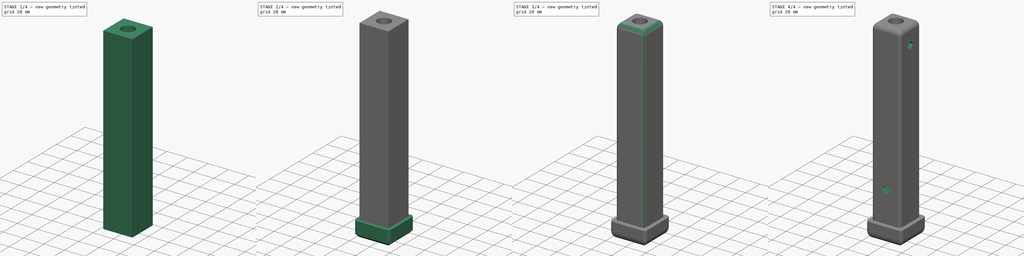
[diagram: build sequence overview — one tinted view per stage of 4, left to right]
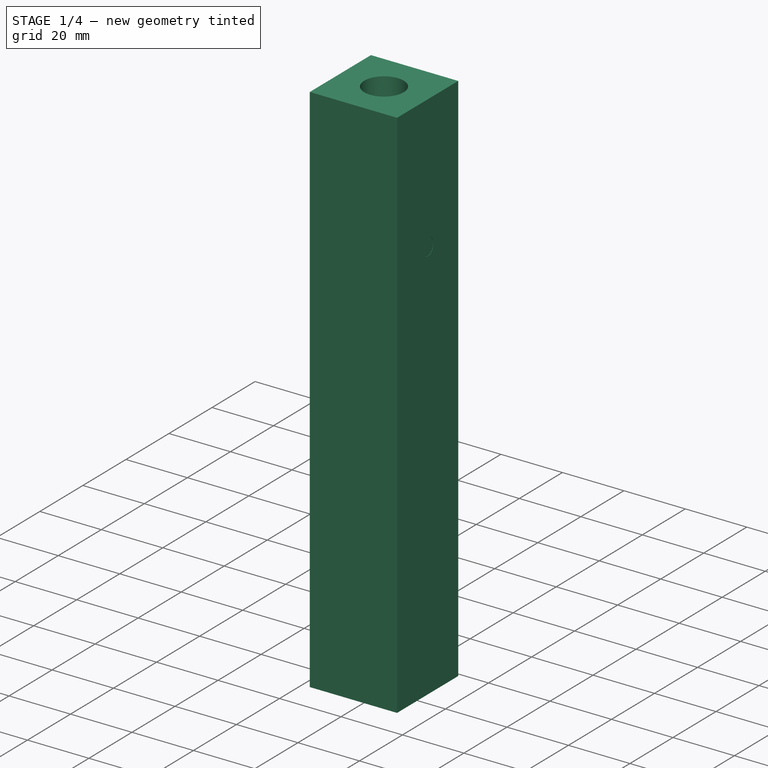
[diagram: stage 1 of 4 — iso view after this stage's code; geometry added in this stage tinted green]
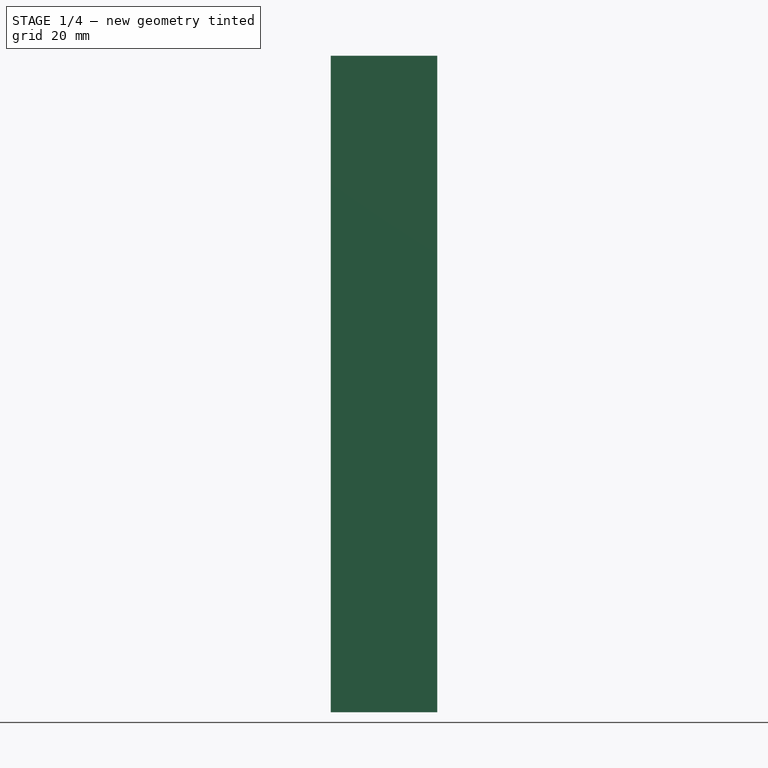
[diagram: stage 1 of 4 — front view after this stage's code; geometry added in this stage tinted green]
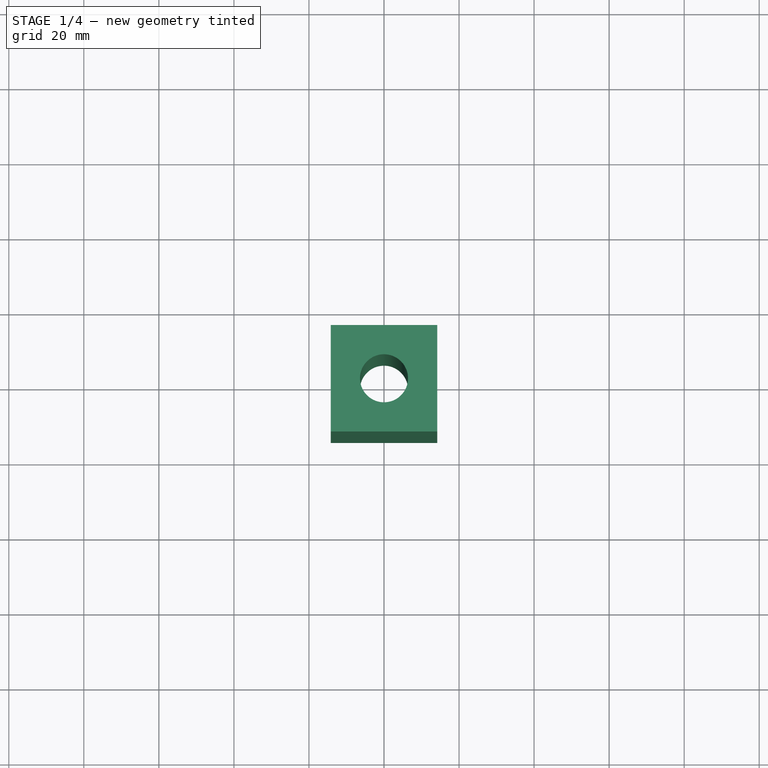
[diagram: stage 1 of 4 — top view after this stage's code; geometry added in this stage tinted green]
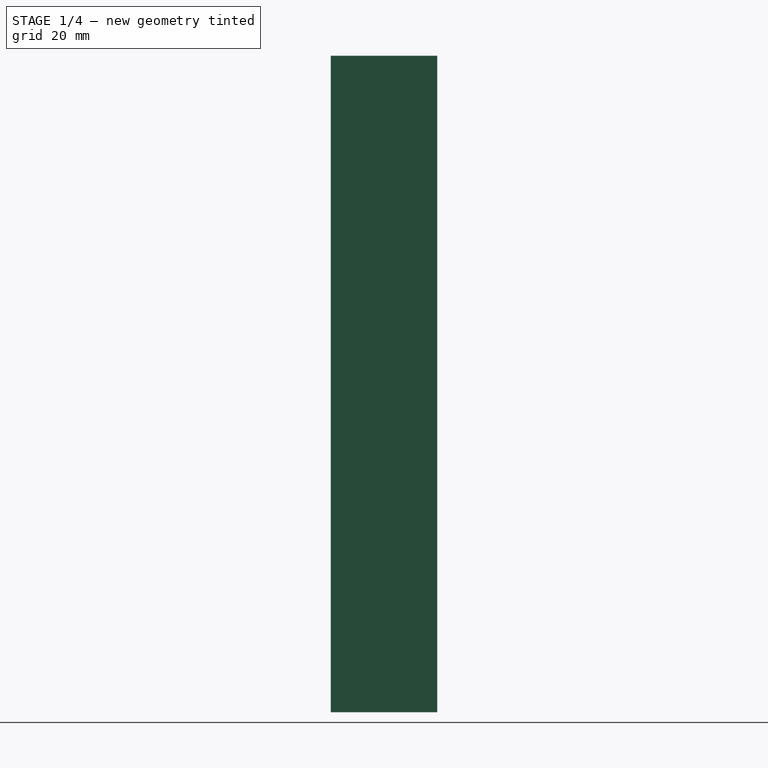
[diagram: stage 1 of 4 — right view after this stage's code; geometry added in this stage tinted green]
FCSTD DOCUMENT  (FreeCAD 0.16R)
Label: StrollerKit2
License: All rights reserved
LicenseURL: http://en.wikipedia.org/wiki/All_rights_reserved
objects: Sketcher::SketchObject×8, PartDesign::Pocket×5, PartDesign::Fillet×5, PartDesign::Pad×2, PartDesign::Chamfer×1
note: 28 computed .brp shape members not serialized (recipe doc carries the construction recipe); baked Part::Feature solids carry a one-line shape summary decoded from their .brp

FEATURE [Sketcher::SketchObject] Sketch
  sketch-geometry (4):
    g0: LineSegment StartX=-14.2 StartY=14.2 StartZ=0 EndX=14.2 EndY=14.2 EndZ=0
    g1: LineSegment StartX=14.2 StartY=14.2 StartZ=0 EndX=14.2 EndY=-14.2 EndZ=0
    g2: LineSegment StartX=14.2 StartY=-14.2 StartZ=0 EndX=-14.2 EndY=-14.2 EndZ=0
    g3: LineSegment StartX=-14.2 StartY=-14.2 StartZ=0 EndX=-14.2 EndY=14.2 EndZ=0
  constraints (11):
    c: Coincident(g0,g1)
    c: Coincident(g1,g2)
    c: Coincident(g2,g3)
    c: Coincident(g3,g0)
    c: Horizontal(g0)
    c: Horizontal(g2)
    c: Vertical(g1)
    c: Vertical(g3)
    c: Symmetric(g0,g2,g-1)
    c: Equal(g0,g1)
    c: Distance(g0) = 28.4
FEATURE [PartDesign::Pad] Pad
  Length = 175
  Length2 = 100
  Sketch = -> Sketch
  Type = 0
FEATURE [Sketcher::SketchObject] Sketch001
  Placement = pos=(0,0,0) rot=(1,0,0;3.14159rad)
  Support = -> Pad [Face5]
  sketch-geometry (1):
    g0: Circle CenterX=0 CenterY=0 CenterZ=0 NormalX=0 NormalY=0 NormalZ=1 Radius=6.4
  constraints (2):
    c: Radius(g0) = 6.4
    c: Coincident(g0,g-1)
FEATURE [PartDesign::Pocket] Pocket
  Length = 5
  Midplane = true
  Sketch = -> Sketch001
  Type = 1
FEATURE [Sketcher::SketchObject] Sketch002
  Placement = pos=(14.2,0,0) rot=(0.57735,0.57735,0.57735;2.0944rad)
  Support = -> Pocket [Face3]
  sketch-geometry (1):
    g0: Circle CenterX=0 CenterY=131.58 CenterZ=0 NormalX=0 NormalY=0 NormalZ=1 Radius=2.74807
  constraints (2):
    c: PointOnObject(g0,g-2)
    c: Radius(g0) = 2.74807
FEATURE [PartDesign::Pocket] Pocket001
  Length = 0.1
  Sketch = -> Sketch002
  Type = 0
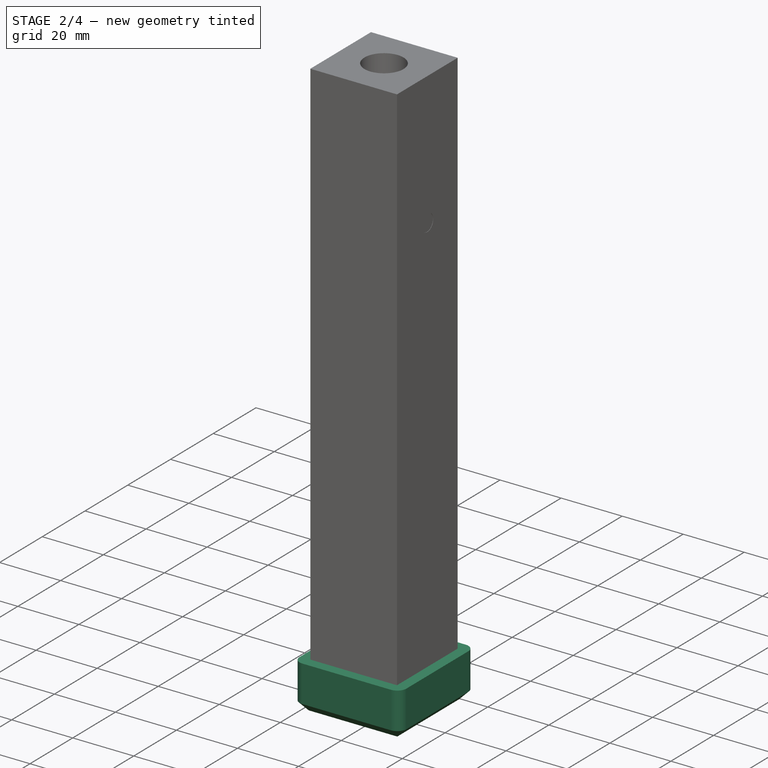
[diagram: stage 2 of 4 — iso view after this stage's code; geometry added in this stage tinted green]
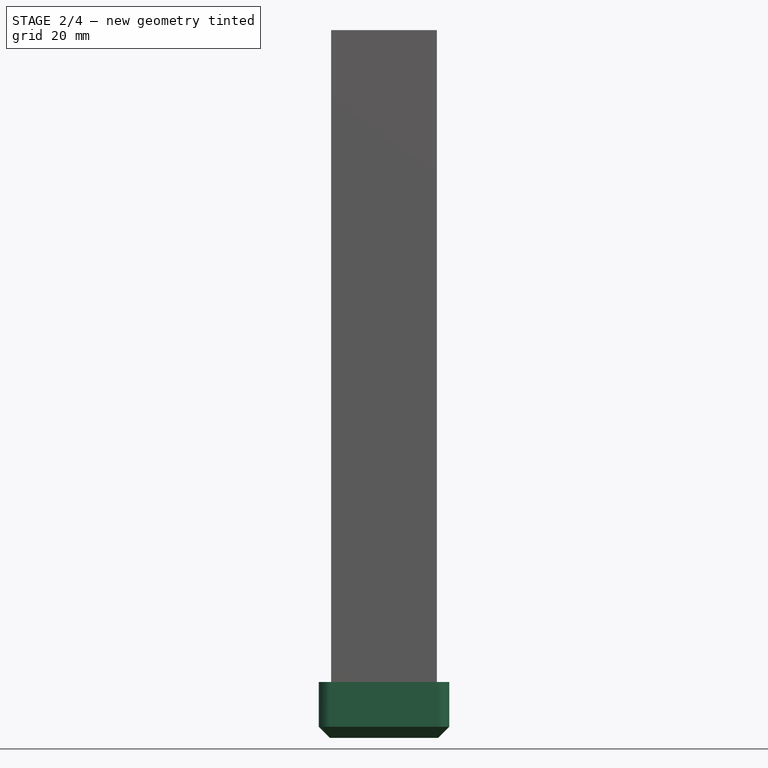
[diagram: stage 2 of 4 — front view after this stage's code; geometry added in this stage tinted green]
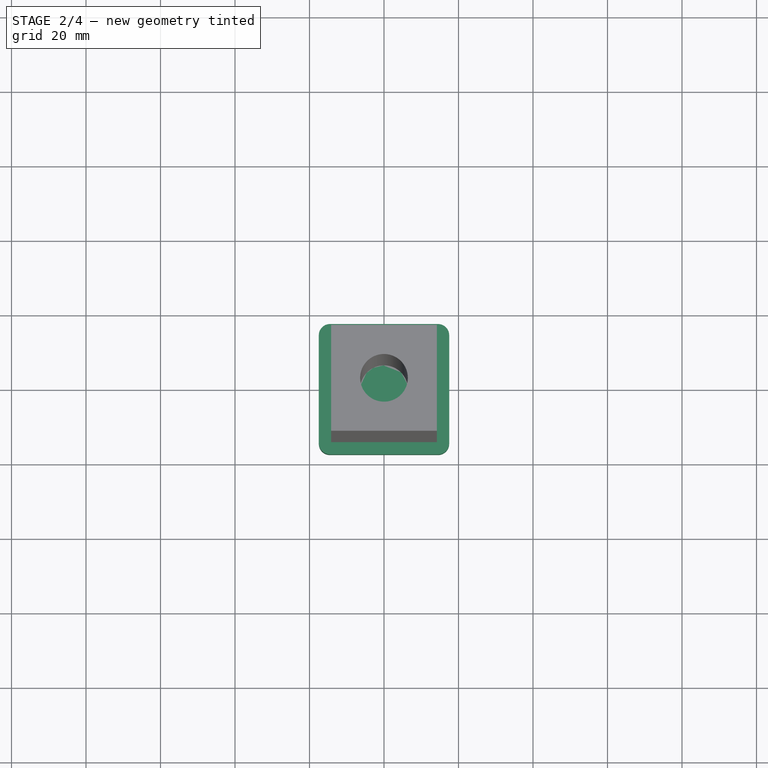
[diagram: stage 2 of 4 — top view after this stage's code; geometry added in this stage tinted green]
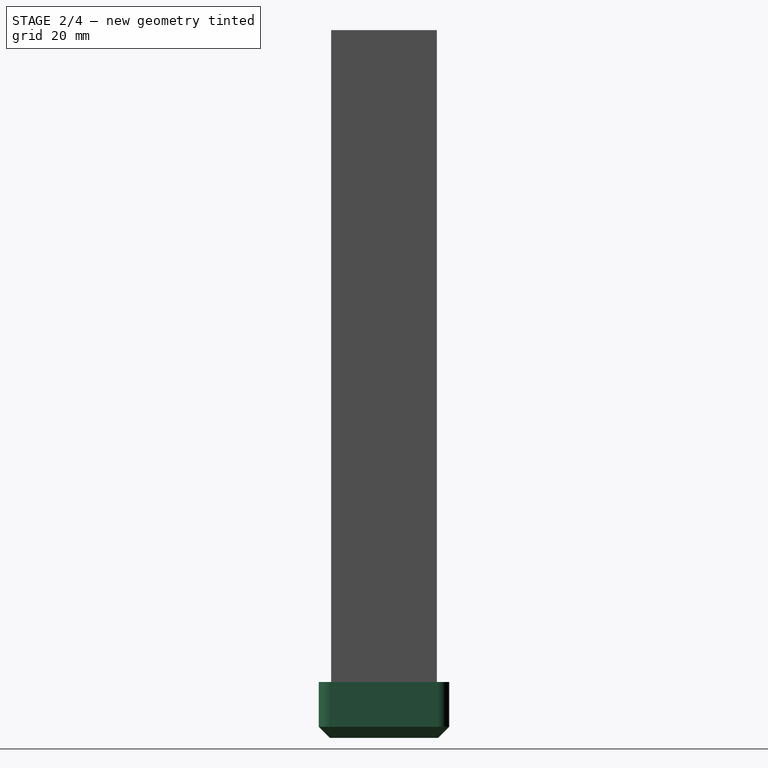
[diagram: stage 2 of 4 — right view after this stage's code; geometry added in this stage tinted green]
FEATURE [Sketcher::SketchObject] Sketch003
  Placement = pos=(0,0,0) rot=(1,0,0;3.14159rad)
  Support = -> Pocket001 [Face4]
  sketch-geometry (4):
    g0: LineSegment StartX=-17.5 StartY=17.5 StartZ=0 EndX=17.5 EndY=17.5 EndZ=0
    g1: LineSegment StartX=17.5 StartY=17.5 StartZ=0 EndX=17.5 EndY=-17.5 EndZ=0
    g2: LineSegment StartX=17.5 StartY=-17.5 StartZ=0 EndX=-17.5 EndY=-17.5 EndZ=0
    g3: LineSegment StartX=-17.5 StartY=-17.5 StartZ=0 EndX=-17.5 EndY=17.5 EndZ=0
  constraints (11):
    c: Coincident(g0,g1)
    c: Coincident(g1,g2)
    c: Coincident(g2,g3)
    c: Coincident(g3,g0)
    c: Horizontal(g0)
    c: Horizontal(g2)
    c: Vertical(g1)
    c: Vertical(g3)
    c: Symmetric(g1,g0,g-1)
    c: Equal(g0,g1)
    c: Distance(g0) = 35
FEATURE [PartDesign::Pad] Pad001
  Length = 15
  Length2 = 100
  Sketch = -> Sketch003
  Type = 0
FEATURE [PartDesign::Fillet] Fillet
  Base = -> Pad001 [Edge24,Edge23,Edge28,Edge26]
  Radius = 3
FEATURE [PartDesign::Chamfer] Chamfer
  Base = -> Fillet [Edge15,Edge17,Edge19,Edge21,Edge23,Edge25,Edge27,Edge28]
  Size = 3
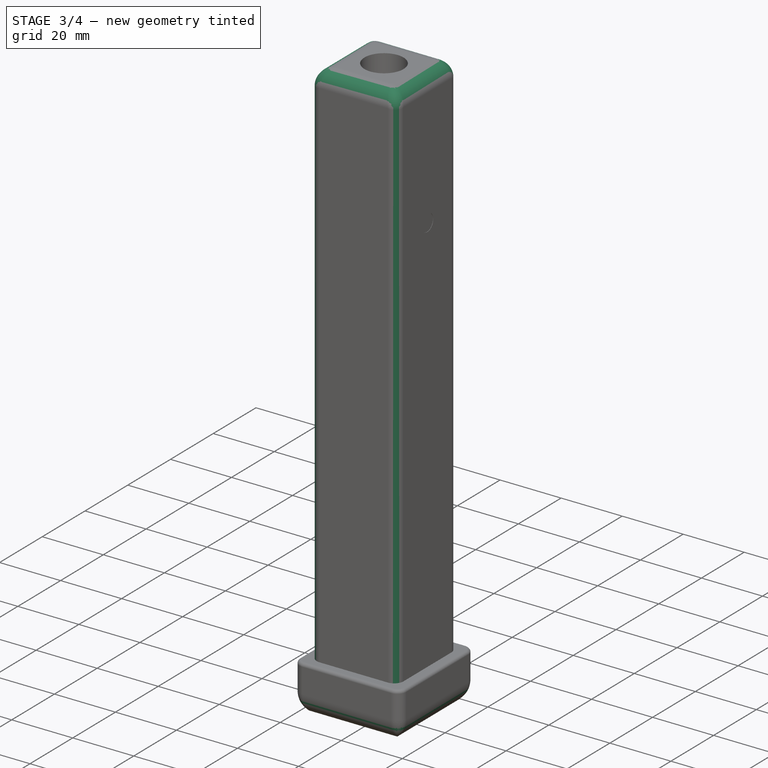
[diagram: stage 3 of 4 — iso view after this stage's code; geometry added in this stage tinted green]
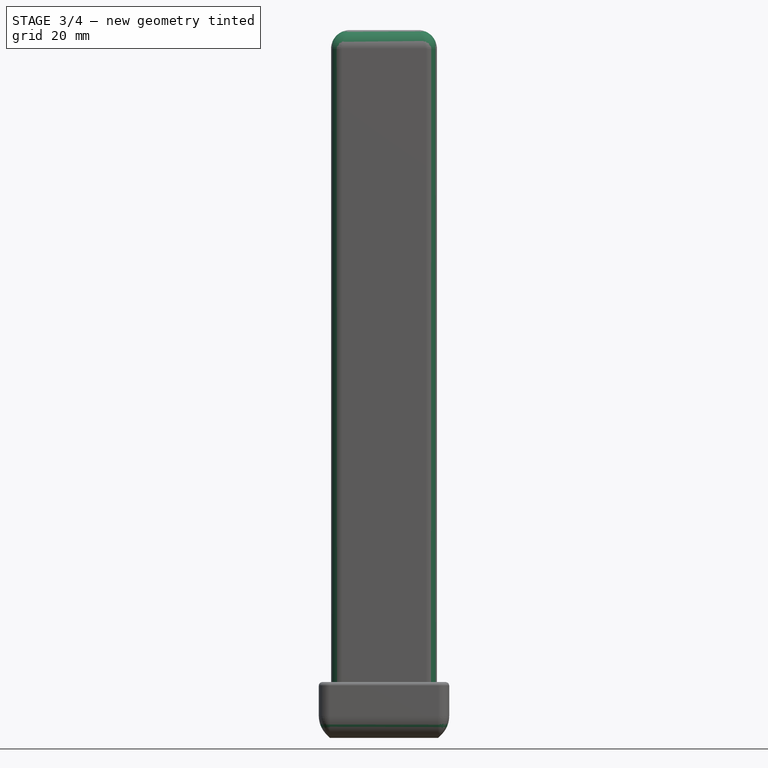
[diagram: stage 3 of 4 — front view after this stage's code; geometry added in this stage tinted green]
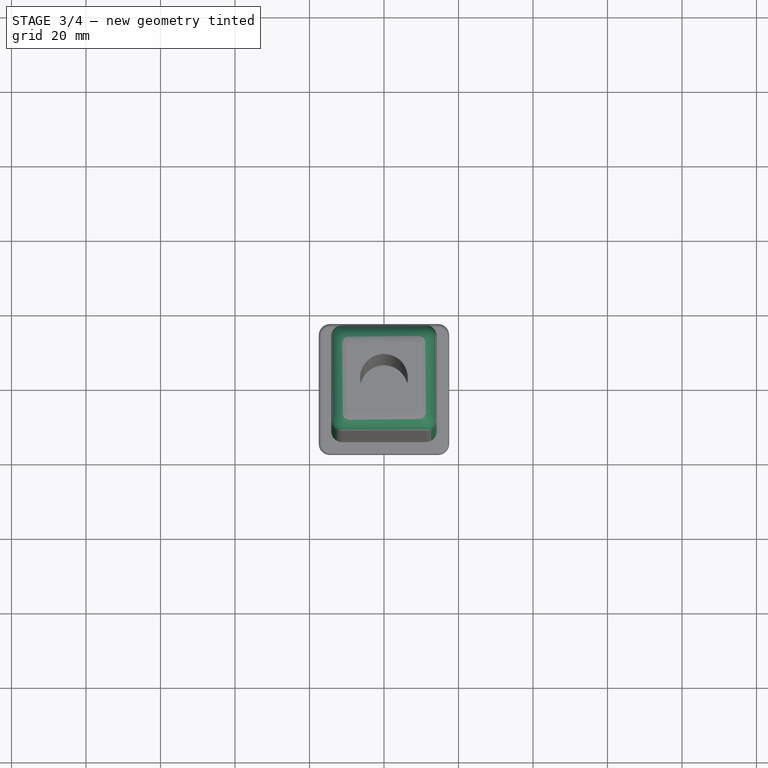
[diagram: stage 3 of 4 — top view after this stage's code; geometry added in this stage tinted green]
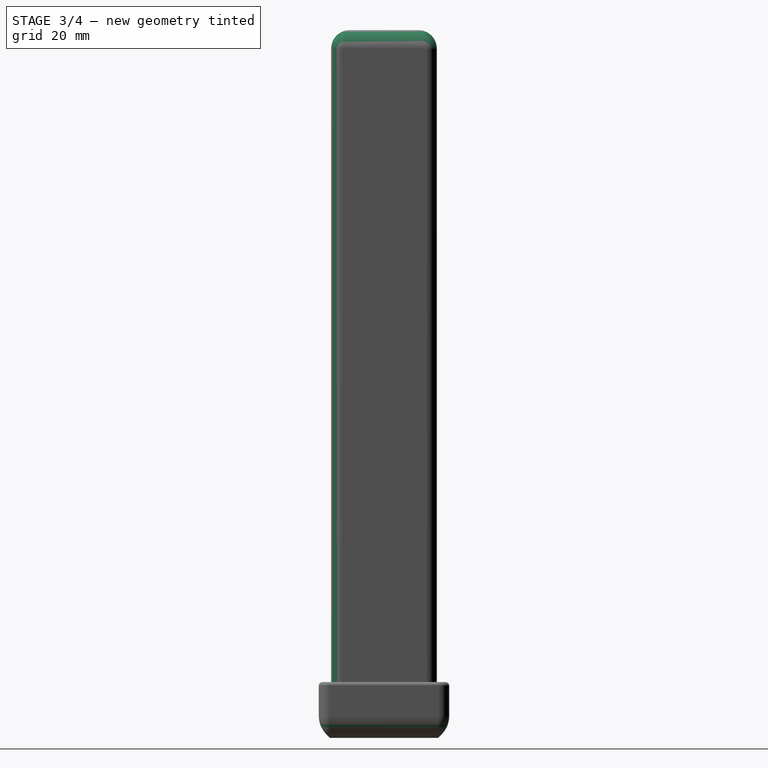
[diagram: stage 3 of 4 — right view after this stage's code; geometry added in this stage tinted green]
FEATURE [PartDesign::Fillet] Fillet001
  Base = -> Chamfer [Edge42,Edge44,Edge41,Edge39]
  Radius = 3
FEATURE [PartDesign::Fillet] Fillet002
  Base = -> Fillet001 [Edge32]
  Radius = 5
FEATURE [PartDesign::Fillet] Fillet003
  Base = -> Fillet002 [Edge54]
  Radius = 7
FEATURE [PartDesign::Fillet] Fillet004
  Base = -> Fillet003 [Edge24]
  Radius = 1
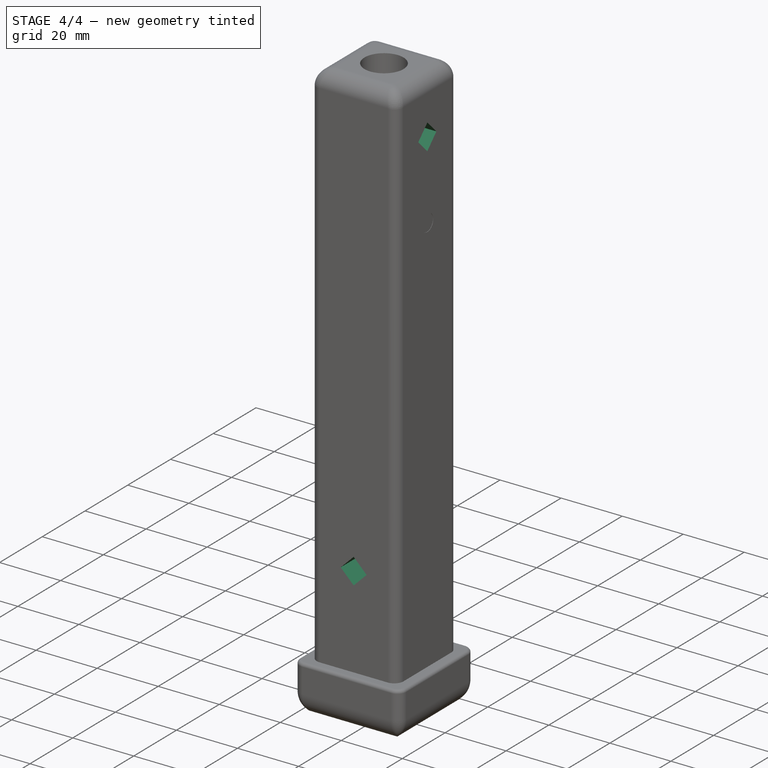
[diagram: stage 4 of 4 — iso view after this stage's code; geometry added in this stage tinted green]
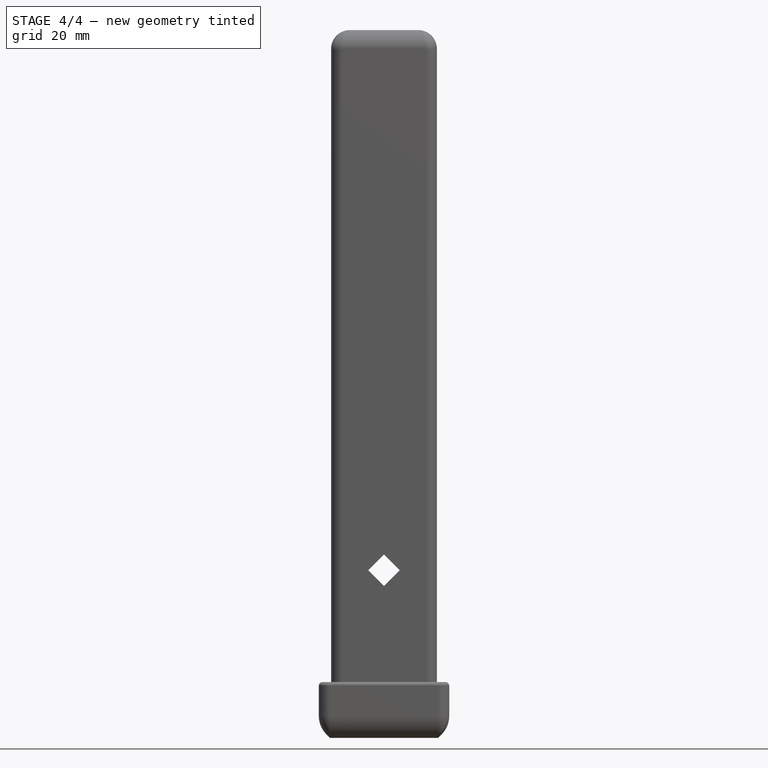
[diagram: stage 4 of 4 — front view after this stage's code; geometry added in this stage tinted green]
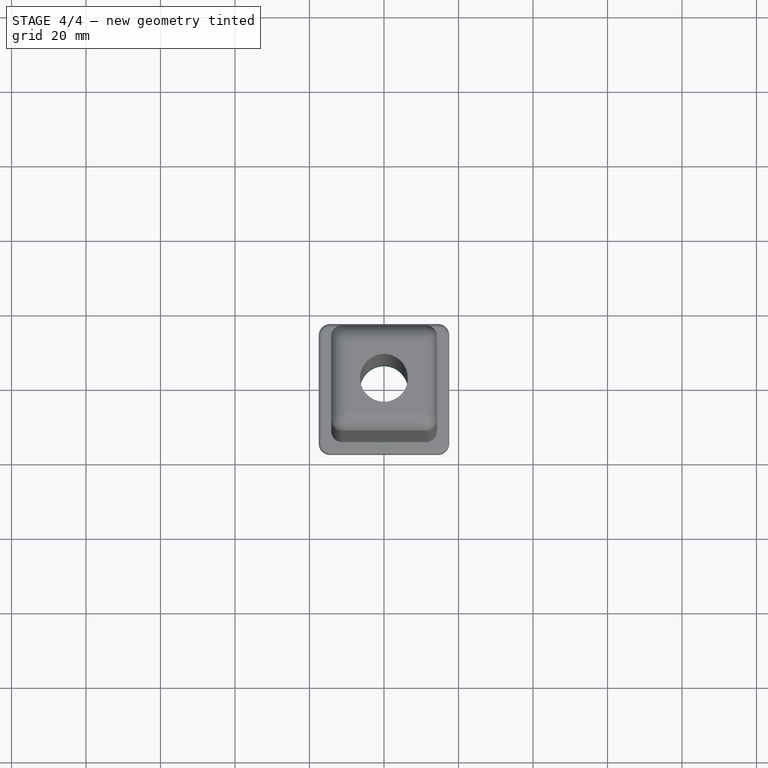
[diagram: stage 4 of 4 — top view after this stage's code; geometry added in this stage tinted green]
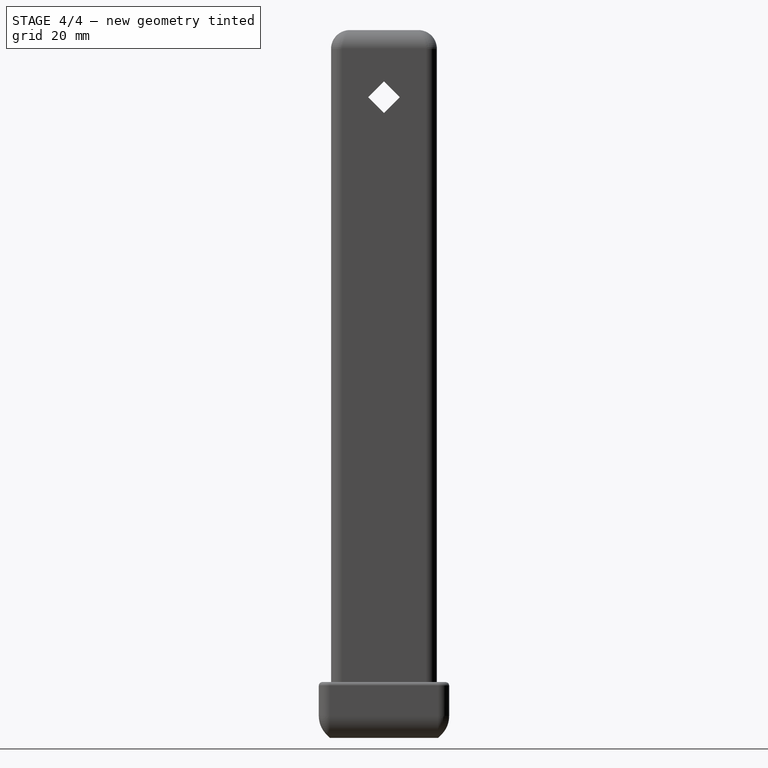
[diagram: stage 4 of 4 — right view after this stage's code; geometry added in this stage tinted green]
FEATURE [Sketcher::SketchObject] Sketch004
  ExternalGeometry = -> [Fillet004]
  Placement = pos=(0,14.2,0) rot=(0,0.707107,0.707107;3.14159rad)
  Support = -> Fillet004 [Face26]
  sketch-geometry (4):
    g0: LineSegment StartX=0 StartY=34.2426 StartZ=0 EndX=-4.24264 EndY=30 EndZ=0
    g1: LineSegment StartX=-4.24264 StartY=30 StartZ=0 EndX=0 EndY=25.7574 EndZ=0
    g2: LineSegment StartX=0 StartY=25.7574 StartZ=0 EndX=4.24264 EndY=30 EndZ=0
    g3: LineSegment StartX=4.24264 StartY=30 StartZ=0 EndX=0 EndY=34.2426 EndZ=0
  constraints (12):
    c: PointOnObject(g0,g-2)
    c: Coincident(g0,g1)
    c: PointOnObject(g1,g-2)
    c: Coincident(g1,g2)
    c: Coincident(g2,g3)
    c: Coincident(g3,g0)
    c: Equal(g2,g1)
    c: Equal(g1,g0)
    c: Equal(g0,g3)
    c: Perpendicular(g0,g3)
    c: Distance(g2) = 6
    c: DistanceY(g2) = 30
FEATURE [PartDesign::Pocket] Pocket002
  Length = 5
  Sketch = -> Sketch004
  Type = 1
FEATURE [Sketcher::SketchObject] Sketch005
  Placement = pos=(-14.2,0,0) rot=(0.57735,-0.57735,-0.57735;2.0944rad)
  Support = -> Pocket002 [Face22]
  sketch-geometry (4):
    g0: LineSegment StartX=0 StartY=161.243 StartZ=0 EndX=-4.24264 EndY=157 EndZ=0
    g1: LineSegment StartX=-4.24264 StartY=157 StartZ=0 EndX=0 EndY=152.757 EndZ=0
    g2: LineSegment StartX=0 StartY=152.757 StartZ=0 EndX=4.24264 EndY=157 EndZ=0
    g3: LineSegment StartX=4.24264 StartY=157 StartZ=0 EndX=0 EndY=161.243 EndZ=0
  constraints (12):
    c: PointOnObject(g0,g-2)
    c: Coincident(g0,g1)
    c: PointOnObject(g1,g-2)
    c: Coincident(g1,g2)
    c: Coincident(g2,g3)
    c: Coincident(g3,g0)
    c: Equal(g0,g3)
    c: Equal(g3,g2)
    c: Equal(g2,g1)
    c: Perpendicular(g0,g3)
    c: Distance(g3) = 6
    c: DistanceY(g2) = 157
FEATURE [PartDesign::Pocket] Pocket003
  Length = 5
  Sketch = -> Sketch005
  Type = 1
FEATURE [Sketcher::SketchObject] Sketch006
  Placement = pos=(0,0,-15) rot=(1,0,0;3.14159rad)
  Support = -> Pocket003 [Face30]
  sketch-geometry (1):
    g0: Circle CenterX=0 CenterY=0 CenterZ=0 NormalX=0 NormalY=0 NormalZ=1 Radius=6.4
  constraints (2):
    c: Radius(g0) = 6.4
    c: Coincident(g0,g-1)
FEATURE [PartDesign::Pocket] Pocket004
  Length = 5
  Sketch = -> Sketch006
  Type = 1
FEATURE [Sketcher::SketchObject] Sketch007
  Placement = pos=(14.2,0,0) rot=(0.57735,0.57735,0.57735;2.0944rad)
  Support = -> Pocket004 [Face29]
  sketch-geometry (2):
    g0: ArcOfCircle CenterX=252.605 CenterY=85 CenterZ=0 NormalX=0 NormalY=0 NormalZ=1 Radius=244.397 StartAngle=2.82529 EndAngle=3.4579
    g1: LineSegment StartX=20.3321 StartY=161.021 StartZ=0 EndX=20.3321 EndY=8.979 EndZ=0
  constraints (7):
    c: Coincident(g1,g0)
    c: Coincident(g1,g0)
    c: Vertical(g1)
    c: DistanceY(g0) = 85
    c: Distance(g1) = 152.042
    c: DistanceX(g0) = 252.605
    c: DistanceX(g0) = 20.3321
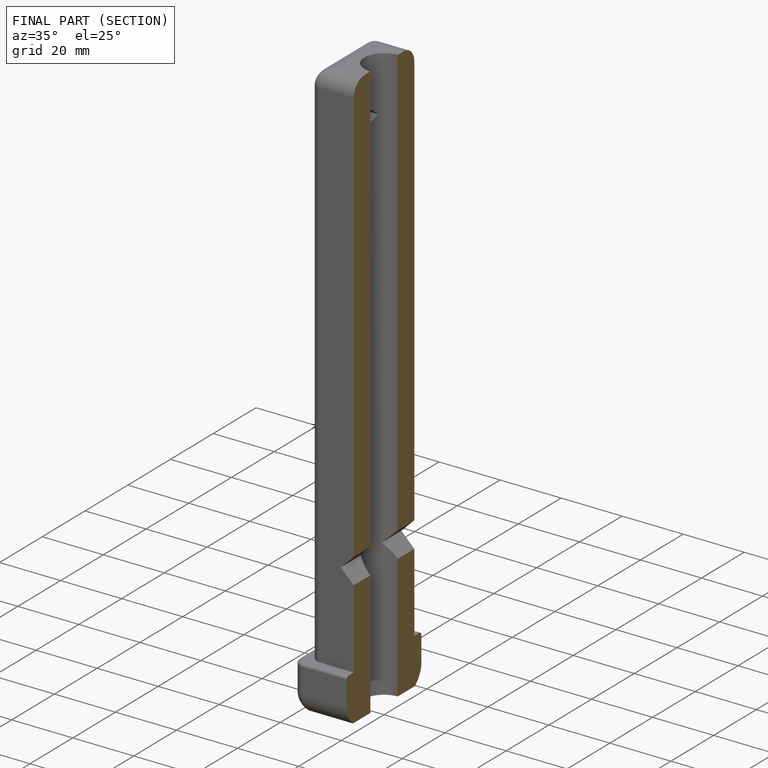
[diagram: finished part — half-section view (interior)]
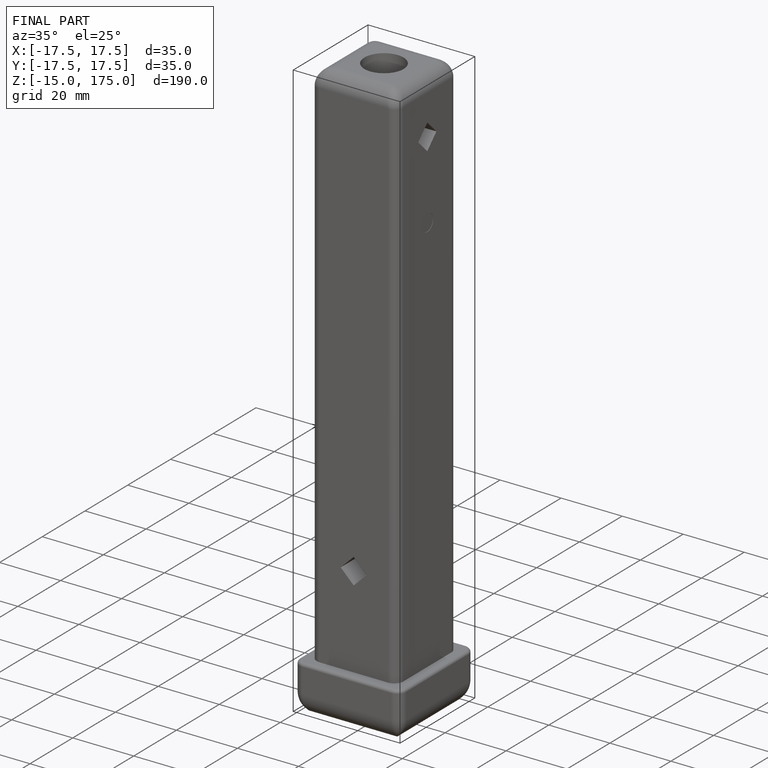
[diagram: finished part — iso view with bounding-box wireframe]
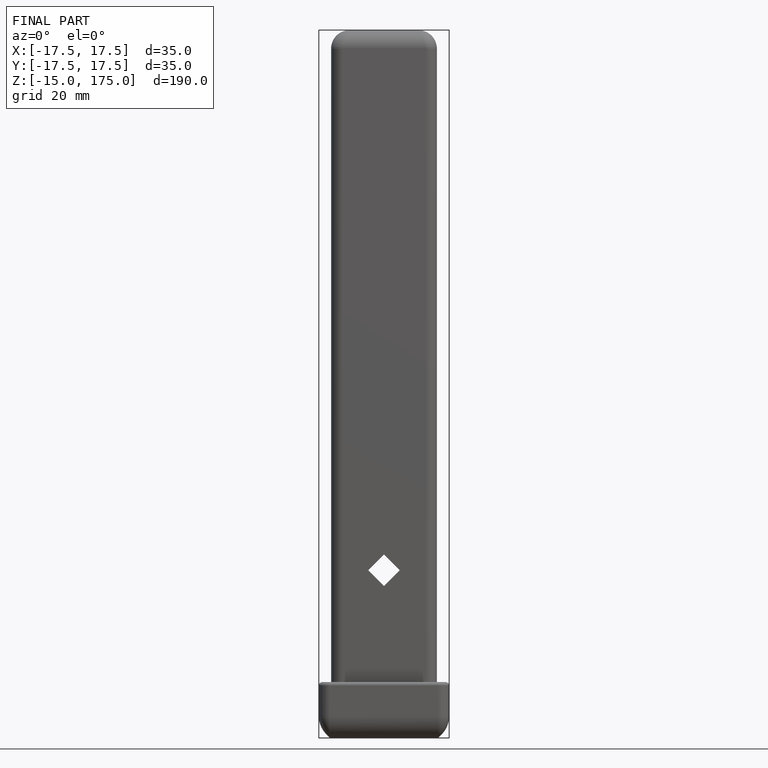
[diagram: finished part — front view with bounding-box wireframe]
